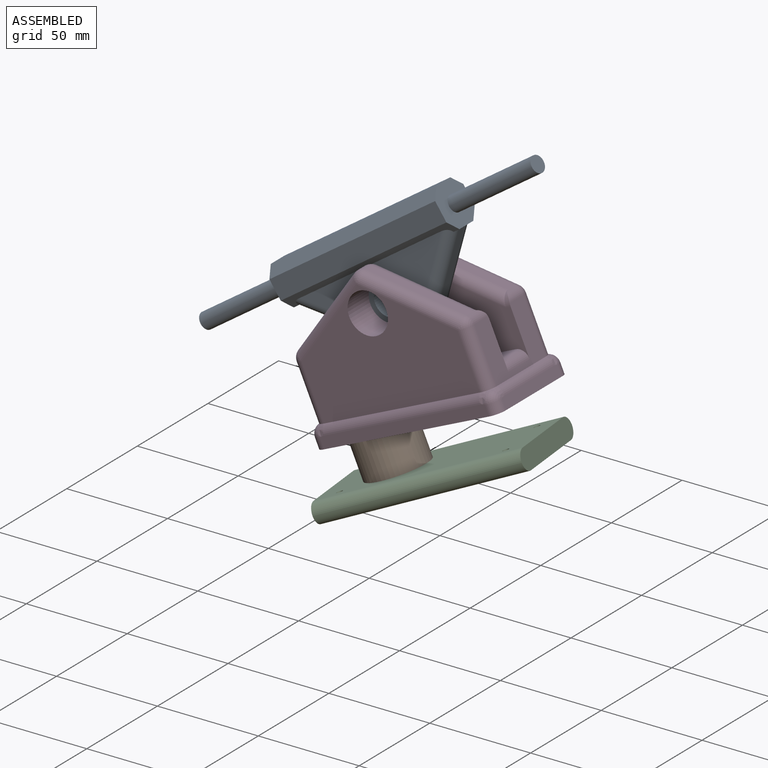
[diagram: assembled view]
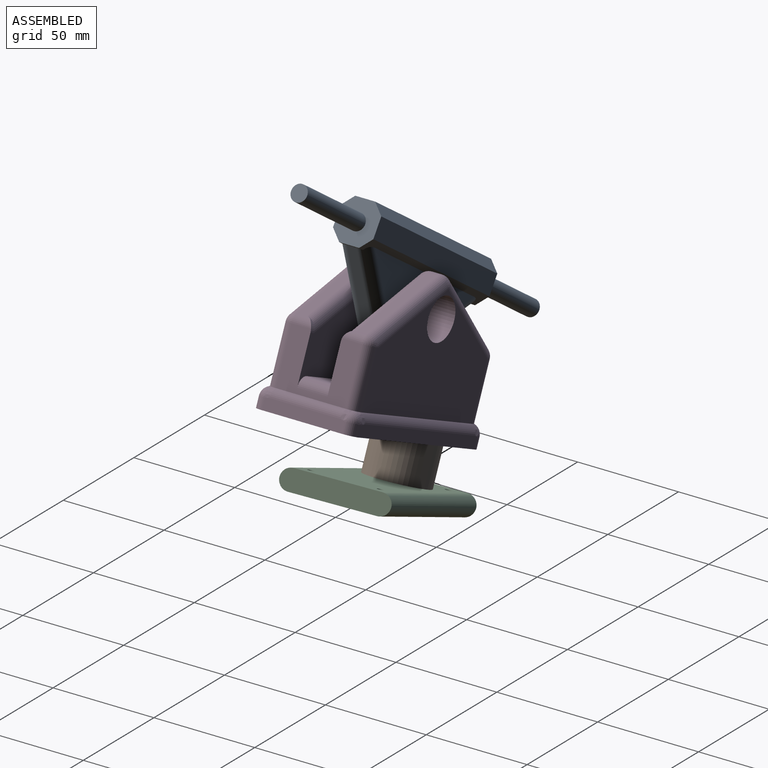
[diagram: assembled view, second angle]
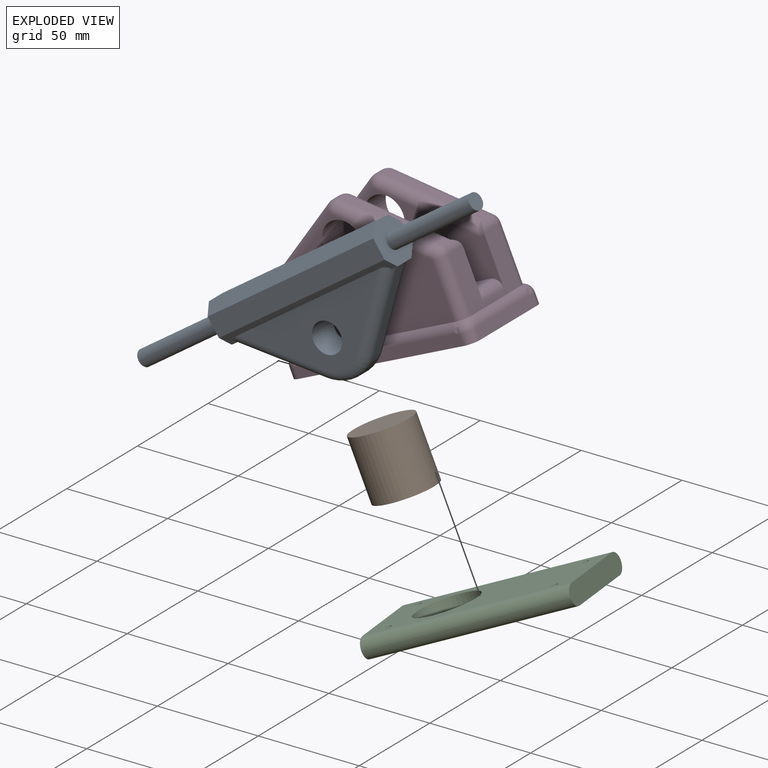
[diagram: exploded view]
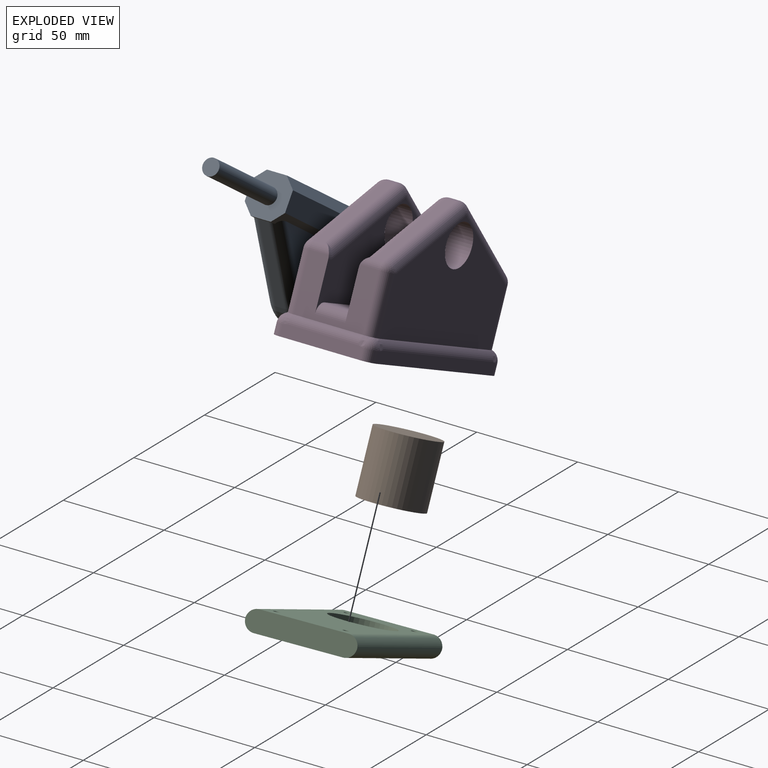
[diagram: exploded view, second angle]
ASSEMBLY  parts=4 mates=3
PART A: 27 faces, bbox 200x20x55.5 mm
  f0: plane 9.84x3.52mm, normal (0,0,1), area 26.3mm2, adj f9,f14,f18,f19,f24,f26
  f1: plane 85.35x31.35mm, normal (0,1,0), area 1325.4mm2, adj f19,f20,f21,f22,f24
  f2: plane 85.35x31.35mm, normal (0,-1,0), area 1325.4mm2, adj f16,f17,f18,f22,f26
  f3: cylinder r=4mm len=50mm, axis (-1,0,0), area 1256.6mm2, adj f4,f9
  f4: plane 8x8mm, normal (1,0,0), area 50.3mm2, adj f3
  f5: plane 100x9.84mm, normal (0,1,0), area 984mm2, adj f9,f10,f23,f24
  f6: plane 9.84x3.52mm, normal (0,0,1), area 26.3mm2, adj f10,f13,f16,f21,f24,f26
  f7: plane 100x9.84mm, normal (0,-1,0), area 984mm2, adj f9,f10,f25,f26
  f8: plane 100x9.84mm, normal (0,0,-1), area 984mm2, adj f9,f10,f23,f25
  f9: plane 20x20mm, normal (1,0,0), area 298.1mm2, adj f0,f3,f5,f7,f8,f23,f24,f25
  f10: plane 20x20mm, normal (-1,0,0), area 298.1mm2, adj f5,f6,f7,f8,f12,f23,f24,f25
  f11: plane 8x8mm, normal (-1,0,0), area 50.3mm2, adj f12
  f12: cylinder r=4mm len=50mm, axis (-1,0,0), area 1256.6mm2, adj f10,f11
  f13: plane 34.62x29.15mm, normal (-0.64,0,0.76), area 219mm2, adj f6,f15,f16,f21
  f14: plane 34.62x29.15mm, normal (0.64,0,0.76), area 219mm2, adj f0,f15,f18,f19
  f15: cylinder r=20mm len=25.77mm, axis (0,-1,0), area 135.5mm2, adj f13,f14,f17,f20
  f16: cylinder r=5.08mm len=37.9mm, axis (-0.76,0,-0.64), area 357.7mm2, adj f2,f6,f13,f17,f26
  f17: torus R=14.92mm, axis (0,-1,0), area 202.8mm2, adj f2,f15,f16,f18
  f18: cylinder r=5.08mm len=37.9mm, axis (-0.76,0,0.64), area 357.7mm2, adj f0,f2,f14,f17,f26
  f19: cylinder r=5.08mm len=37.9mm, axis (0.76,0,-0.64), area 357.7mm2, adj f0,f1,f14,f20,f24
  f20: torus R=14.92mm, axis (0,-1,0), area 202.8mm2, adj f1,f15,f19,f21
  f21: cylinder r=5.08mm len=37.9mm, axis (0.76,0,0.64), area 357.7mm2, adj f1,f6,f13,f20,f24
  f22: cylinder r=7.5mm len=15mm, axis (0,-1,0), area 706.9mm2, adj f1,f2
  f23: plane 100x5.08mm, normal (0,0.71,-0.71), area 718.4mm2, adj f5,f8,f9,f10
  f24: plane 100x5.08mm, normal (0,0.71,0.71), area 382.6mm2, adj f0,f1,f5,f6,f9,f10,f19,f21
  f25: plane 100x5.08mm, normal (0,-0.71,-0.71), area 718.4mm2, adj f7,f8,f9,f10
  f26: plane 100x5.08mm, normal (0,-0.71,0.71), area 382.6mm2, adj f0,f2,f6,f7,f9,f10,f16,f18
PART B: 3 faces, bbox 30x30x30 mm
  f0: cylinder r=15mm len=30mm, axis (-1,0,0), area 2827.4mm2, adj f1,f2
  f1: plane 30x30mm, normal (1,0,0), area 706.9mm2, adj f0
  f2: plane 30x30mm, normal (-1,0,0), area 706.9mm2, adj f0
PART C: 13 faces, bbox 100x50x10 mm
  f0: plane 50x10mm, normal (1,0,0), area 477.8mm2, adj f2,f3,f9,f10,f11,f12
  f1: plane 50x10mm, normal (-1,0,0), area 477.8mm2, adj f2,f3,f9,f10,f11,f12
  f2: plane 100x39.84mm, normal (0,0,1), area 3248.9mm2, adj f0,f1,f4,f5,f6,f7,f8,f9
  f3: plane 100x39.84mm, normal (0,0,-1), area 3248.9mm2, adj f0,f1,f4,f5,f6,f7,f8,f10
  f4: cylinder r=15mm len=30mm, axis (0,0,-1), area 942.5mm2, adj f2,f3
  f5: cylinder r=1.5mm len=10mm, axis (0,0,1), area 94.2mm2, adj f2,f3
  f6: cylinder r=1.5mm len=10mm, axis (0,0,1), area 94.2mm2, adj f2,f3
  f7: cylinder r=1.5mm len=10mm, axis (0,0,1), area 94.2mm2, adj f2,f3
  f8: cylinder r=1.5mm len=10mm, axis (0,0,1), area 94.2mm2, adj f2,f3
  f9: cylinder r=5.08mm len=100mm, axis (1,0,0), area 790mm2, adj f0,f1,f2,f10
  f10: cylinder r=5.08mm len=100mm, axis (-1,0,0), area 790mm2, adj f0,f1,f3,f9
  f11: cylinder r=5.08mm len=100mm, axis (-1,0,0), area 790mm2, adj f0,f1,f2,f12
  f12: cylinder r=5.08mm len=100mm, axis (1,0,0), area 790mm2, adj f0,f1,f3,f11
PART D: 75 faces, bbox 100.1x50.1x69.1 mm
  f0: plane 26.42x8.12mm, normal (0,1,0), area 160mm2, adj f4,f41,f67,f71,f72,f74
  f1: plane 26.42x8.12mm, normal (0,-1,0), area 160mm2, adj f3,f4,f44,f70,f72,f74
  f2: plane 68.57x15mm, normal (0,0,1), area 993.3mm2, adj f39,f40,f73,f74
  f3: plane 4.9x3.04mm, normal (0,0,1), area 5.8mm2, adj f1,f72,f74
  f4: plane 34.84x27.2mm, normal (-1,0,0), area 580mm2, adj f0,f1,f6,f33,f35,f37,f56,f70
  f5: plane 42.49x26.86mm, normal (-0.53,0,0.85), area 242.9mm2, adj f6,f10,f25,f44,f70
  f6: cylinder r=5.08mm len=9.73mm, axis (0,1,0), area 42.6mm2, adj f4,f5,f36,f70
  f7: plane 42.49x26.86mm, normal (0.53,0,0.85), area 242.9mm2, adj f8,f21,f24,f42,f68
  f8: cylinder r=5.08mm len=9.73mm, axis (0,1,0), area 42.6mm2, adj f7,f14,f29,f68
  f9: plane 100x50mm, normal (0,0,-1), area 4663.7mm2, adj f15,f16,f17,f18,f53,f59,f60,f66
  f10: cylinder r=5.08mm len=5.43mm, axis (0,1,0), area 27.7mm2, adj f5,f19,f27,f46
  f11: cylinder r=10mm len=20mm, axis (0,-1,0), area 942.5mm2, adj f13,f40
  f12: plane 84.84x53.99mm, normal (0,-1,0), area 3130mm2, adj f21,f22,f28,f33,f38,f51
  f13: plane 84.84x53.99mm, normal (0,1,0), area 3130mm2, adj f11,f25,f26,f32,f37,f48
  f14: plane 34.84x27.2mm, normal (1,0,0), area 580mm2, adj f8,f28,f30,f32,f39,f40,f63,f68
  f15: plane 39.84x5.63mm, normal (1,0,0), area 223.1mm2, adj f9,f60,f62,f63,f64,f66
  f16: plane 89.84x5.62mm, normal (0,1,0), area 504.3mm2, adj f9,f47,f48,f49,f59,f66
  f17: plane 39.84x5.63mm, normal (-1,0,0), area 223.1mm2, adj f9,f53,f55,f56,f57,f59
  f18: plane 89.84x5.62mm, normal (0,-1,0), area 504.3mm2, adj f9,f50,f51,f52,f53,f60
  f19: plane 42.49x26.86mm, normal (0.53,0,0.85), area 242.9mm2, adj f10,f26,f30,f45,f69
  f20: plane 42.49x26.86mm, normal (-0.53,0,0.85), area 242.9mm2, adj f22,f24,f35,f41,f71
  f21: cylinder r=5.08mm len=45.13mm, axis (-0.85,0,0.53), area 400.4mm2, adj f7,f12,f23,f29
  f22: cylinder r=5.08mm len=45.13mm, axis (-0.85,0,-0.53), area 400.4mm2, adj f12,f20,f23,f34
  f23: sphere r=5.08mm, area 29.1mm2, adj f21,f22,f24
  f24: cylinder r=5.08mm len=5.43mm, axis (0,1,0), area 27.7mm2, adj f7,f20,f23,f43
  f25: cylinder r=5.08mm len=45.13mm, axis (0.85,0,0.53), area 400.4mm2, adj f5,f13,f27,f36
  f26: cylinder r=5.08mm len=45.13mm, axis (0.85,0,-0.53), area 400.4mm2, adj f13,f19,f27,f31
  f27: sphere r=5.08mm, area 29.1mm2, adj f10,f25,f26
  f28: cylinder r=5.08mm len=27.2mm, axis (0,0,-1), area 217mm2, adj f12,f14,f29,f52,f62
  f29: sphere r=5.08mm, area 26mm2, adj f8,f21,f28
  f30: cylinder r=5.08mm len=9.73mm, axis (0,1,0), area 42.6mm2, adj f14,f19,f31,f69
  f31: sphere r=5.08mm, area 26mm2, adj f26,f30,f32
  f32: cylinder r=5.08mm len=27.2mm, axis (0,0,1), area 217mm2, adj f13,f14,f31,f49,f64
  f33: cylinder r=5.08mm len=27.2mm, axis (0,0,1), area 217mm2, adj f4,f12,f34,f50,f55
  f34: sphere r=5.08mm, area 26mm2, adj f22,f33,f35
  f35: cylinder r=5.08mm len=9.73mm, axis (0,1,0), area 42.6mm2, adj f4,f20,f34,f71
  f36: sphere r=5.08mm, area 26mm2, adj f6,f25,f37
  f37: cylinder r=5.08mm len=27.2mm, axis (0,0,-1), area 217mm2, adj f4,f13,f36,f47,f57
  f38: cylinder r=10mm len=20mm, axis (0,-1,0), area 942.5mm2, adj f12,f39
  f39: plane 73.65x51.29mm, normal (0,1,0), area 2168mm2, adj f2,f14,f38,f41,f42,f68,f73,f74
  f40: plane 73.65x51.29mm, normal (0,-1,0), area 2168mm2, adj f2,f11,f14,f44,f45,f69,f73,f74
  f41: cylinder r=5.08mm len=47.71mm, axis (-0.85,0,-0.53), area 343.2mm2, adj f0,f20,f39,f43,f71,f74
  f42: cylinder r=5.08mm len=47.71mm, axis (-0.85,0,0.53), area 408.4mm2, adj f7,f39,f43,f68
  f43: sphere r=5.08mm, area 29.1mm2, adj f24,f41,f42
  f44: cylinder r=5.08mm len=47.71mm, axis (0.85,0,0.53), area 343.2mm2, adj f1,f5,f40,f46,f70,f74
  f45: cylinder r=5.08mm len=47.71mm, axis (0.85,0,-0.53), area 408.4mm2, adj f19,f40,f46,f69
  f46: sphere r=5.08mm, area 29.1mm2, adj f10,f44,f45
  f47: bspline ~4.99x4.51mm, area 18.1mm2, adj f16,f37,f48,f58
  f48: cylinder r=5.08mm len=84.84mm, axis (1,0,0), area 447.4mm2, adj f13,f16,f47,f49
  f49: bspline ~4.95x4.4mm, area 18.1mm2, adj f16,f32,f48,f65
  f50: bspline ~5.04x4.7mm, area 18.1mm2, adj f18,f33,f51,f54
  f51: cylinder r=5.08mm len=84.84mm, axis (1,0,0), area 447.4mm2, adj f12,f18,f50,f52
  f52: bspline ~4.99x4.51mm, area 18.1mm2, adj f18,f28,f51,f61
  f53: cylinder r=5.08mm len=5.16mm, axis (0,0,1), area 41.2mm2, adj f9,f17,f18,f54
  f54: sphere r=5.08mm, area 31.1mm2, adj f50,f53,f55
  f55: bspline ~4.9x4.63mm, area 18.1mm2, adj f17,f33,f54,f56
  f56: cylinder r=5.08mm len=34.84mm, axis (0,1,0), area 183.7mm2, adj f4,f17,f55,f57
  f57: bspline ~4.95x4.4mm, area 18.1mm2, adj f17,f37,f56,f58
  f58: sphere r=5.08mm, area 31.1mm2, adj f47,f57,f59
  f59: cylinder r=5.08mm len=5.16mm, axis (0,0,-1), area 41.2mm2, adj f9,f16,f17,f58
  f60: cylinder r=5.08mm len=5.16mm, axis (0,0,-1), area 41.2mm2, adj f9,f15,f18,f61
  f61: sphere r=5.08mm, area 31.1mm2, adj f52,f60,f62
  f62: bspline ~4.9x4.63mm, area 18.1mm2, adj f15,f28,f61,f63
  f63: cylinder r=5.08mm len=34.84mm, axis (0,1,0), area 183.7mm2, adj f14,f15,f62,f64
  f64: bspline ~4.95x4.4mm, area 18.1mm2, adj f15,f32,f63,f65
  f65: sphere r=5.08mm, area 31.1mm2, adj f49,f64,f66
  f66: cylinder r=5.08mm len=5.16mm, axis (0,0,1), area 41.2mm2, adj f9,f15,f16,f65
  f67: plane 4.9x3.04mm, normal (0,0,1), area 5.8mm2, adj f0,f72,f74
  f68: extruded ~6.01x5.08mm, area 13.8mm2, adj f7,f8,f14,f39,f42
  f69: extruded ~6.01x5.08mm, area 13.8mm2, adj f14,f19,f30,f40,f45
  f70: extruded ~6.01x5.08mm, area 13.8mm2, adj f1,f4,f5,f6,f44
  f71: extruded ~6.01x5.08mm, area 13.8mm2, adj f0,f4,f20,f35,f41
  f72: cylinder r=5.08mm len=15mm, axis (0,-1,0), area 118.8mm2, adj f0,f1,f3,f4,f67,f74
  f73: cylinder r=5.08mm len=15mm, axis (0,-1,0), area 119.7mm2, adj f2,f14,f39,f40
  f74: cylinder r=10mm len=50.32mm, axis (0,0,-1), area 1976.6mm2, adj f0,f1,f2,f3,f9,f39,f40,f41
PLACE A rot(axis=(0,1,0),145.2deg) t=(-13.6,0,19.59)mm
PLACE B rot(axis=(0.14,-0.97,0.22),115.9deg) t=(3.37,0,-87.78)mm
PLACE C rot(axis=(0.97,0.1,0.21),177.5deg) t=(16.41,3.92,-70.99)mm
PLACE D rot(axis=(0,-1,0),24.1deg) t=(21.03,0,-47.02)mm
MATE revolute B.f0 <-> C.f4  axis (0.41,0,-0.91) through (3.37,0,-87.78)mm
MATE revolute A.f15 <-> D.f11  axis (0,-1,0) through (0,-7.5,0)mm
MATE revolute D.f74 <-> B.f0  axis (0.41,0,-0.91) through (-8.88,0,-60.39)mm
